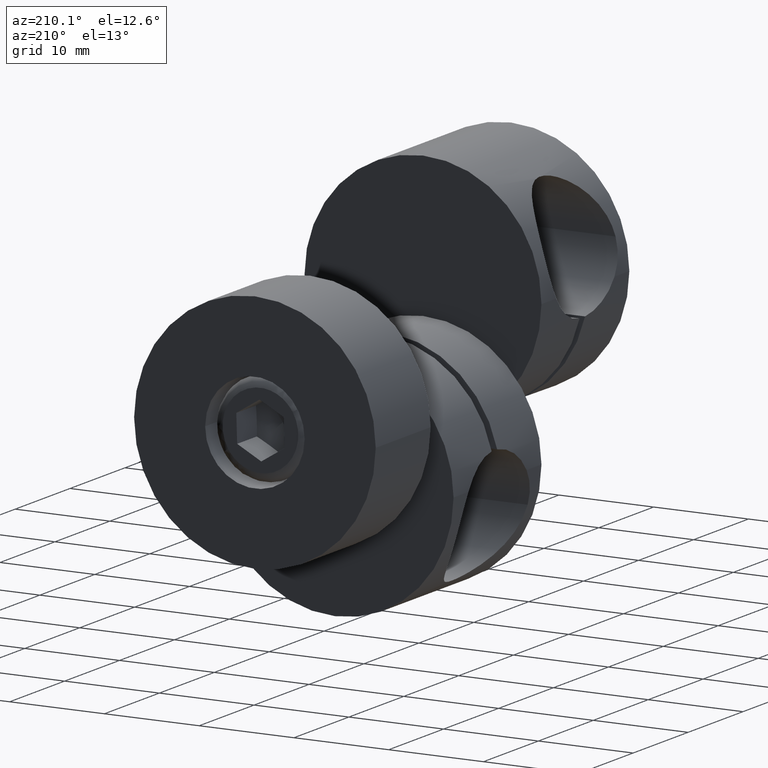
[diagram: clean part render]
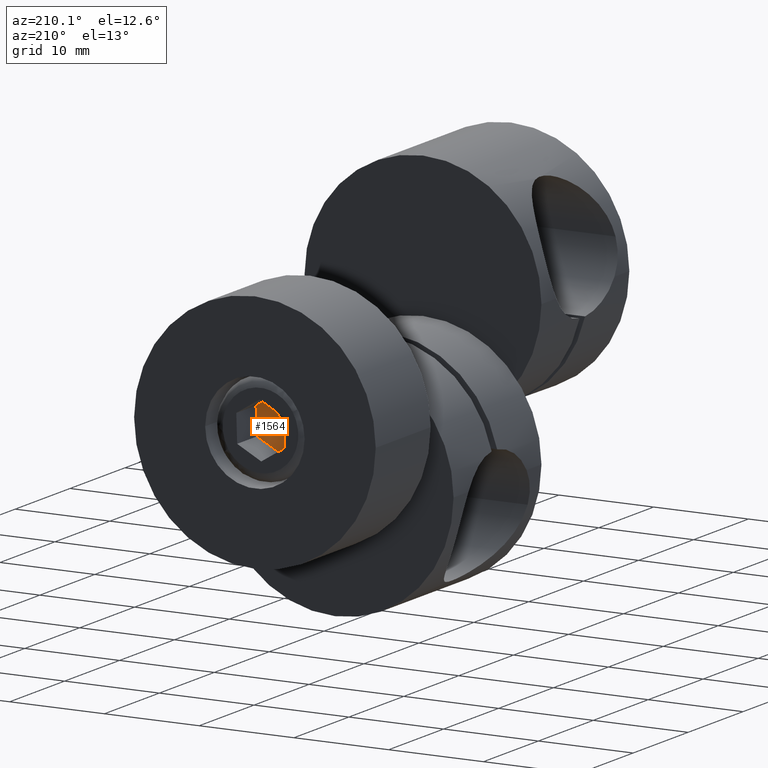
[diagram: same view with one face highlighted and labeled with its STEP entity id]
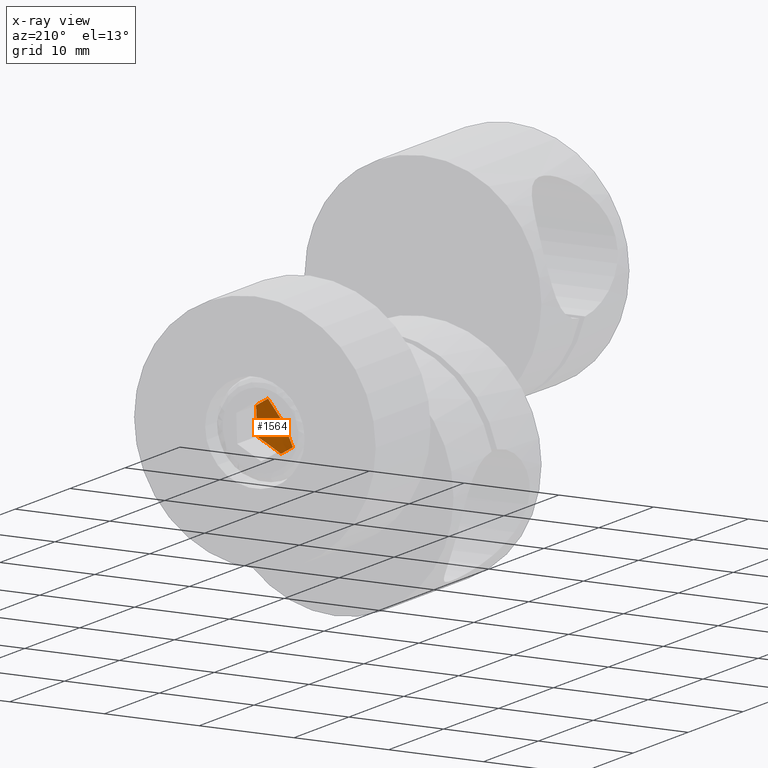
[diagram: x-ray of the same camera — body ghosted, the highlighted face saturated]
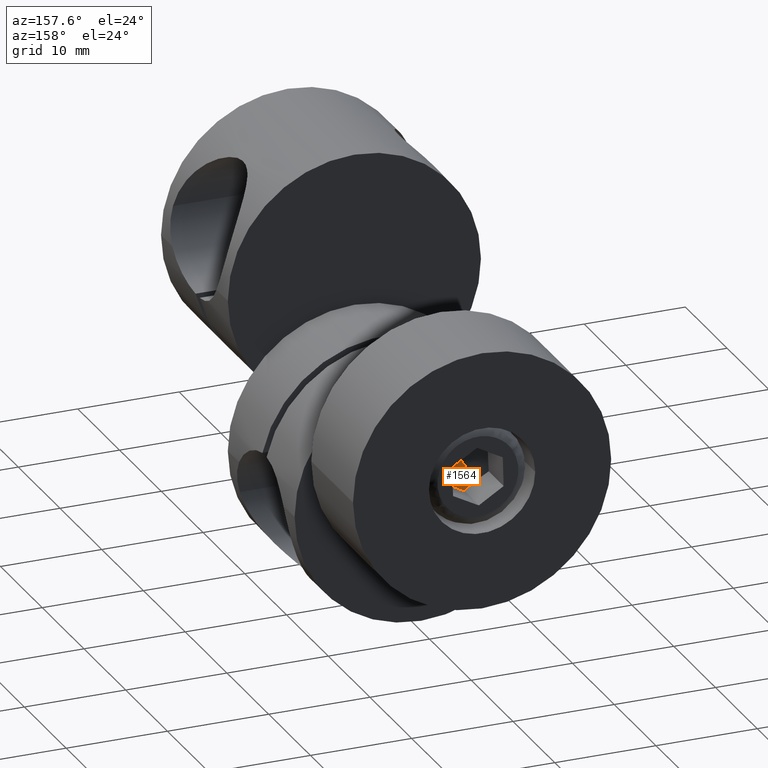
[diagram: same view with one face highlighted and labeled with its STEP entity id]
A machine part, auxiliary view. The second image highlights one B-rep face of the part: STEP entity #1564.
The next image is the same camera in x-ray: the body ghosted, the highlighted face saturated — about 0% of this face is hidden behind the body in this view.
A second angle (auxiliary view) of the same face is appended — the face is thin or edge-on in the first view.
In plain terms, the highlighted conical surface has half-angle 80 deg.
Its self-contained STEP definition (entity closure, byte-faithful):
#54 = CARTESIAN_POINT ( 'NONE',  ( -1.316673841417880000, 17.95306085076419900, 5.374824714211574600 ) ) ;
#125 = ORIENTED_EDGE ( 'NONE', *, *, #400, .T. ) ;
#158 = CARTESIAN_POINT ( 'NONE',  ( -0.08970331809006840100, 18.02125554851480200, 4.614642717521671300 ) ) ;
#162 = ORIENTED_EDGE ( 'NONE', *, *, #1032, .T. ) ;
#165 = CARTESIAN_POINT ( 'NONE',  ( -8.980640777918389500E-011, 17.51224339486927300, 7.499999999855030600 ) ) ;
#168 = CARTESIAN_POINT ( 'NONE',  ( -1.529486177326654200, 18.02430962138916500, 5.031335307376240400 ) ) ;
#192 = CARTESIAN_POINT ( 'NONE',  ( -1.316673841417880000, 17.95306085076419900, 5.374824714211574600 ) ) ;
#218 = ORIENTED_EDGE ( 'NONE', *, *, #569, .F. ) ;
#253 = B_SPLINE_CURVE_WITH_KNOTS ( 'NONE', 3,
 ( #938, #1675, #1875, #944 ),
 .UNSPECIFIED., .F., .F.,
 ( 4, 4 ),
 ( 0.001443375672827954800, 0.002886751345725284200 ),
 .UNSPECIFIED. ) ;
#297 = CARTESIAN_POINT ( 'NONE',  ( 1.529486177326663700, 18.02430962138916500, 9.968664692623752500 ) ) ;
#347 = CARTESIAN_POINT ( 'NONE',  ( 1.182118863995427200, 17.92728383293341900, 5.297139362392222500 ) ) ;
#393 = CARTESIAN_POINT ( 'NONE',  ( -0.9076836670175840700, 17.95306085076419900, 5.121430715311372100 ) ) ;
#400 = EDGE_CURVE ( 'NONE', #1539, #1242, #544, .T. ) ;
#414 = ORIENTED_EDGE ( 'NONE', *, *, #2278, .T. ) ;
#504 = AXIS2_PLACEMENT_3D ( 'NONE', #658, #1561, #1367 ) ;
#544 = B_SPLINE_CURVE_WITH_KNOTS ( 'NONE', 3,
 ( #547, #1280, #347, #1075, #158 ),
 .UNSPECIFIED., .F., .F.,
 ( 4, 1, 4 ),
 ( 0.0000000000000000000, 0.001443375672859334400, 0.002886751345718668400 ),
 .UNSPECIFIED. ) ;
#547 = CARTESIAN_POINT ( 'NONE',  ( 2.453941046652899700, 18.02125554852253200, 5.979636006532533800 ) ) ;
#567 = B_SPLINE_CURVE_WITH_KNOTS ( 'NONE', 3,
 ( #2276, #962, #2285, #1737, #1556 ),
 .UNSPECIFIED., .F., .F.,
 ( 4, 1, 4 ),
 ( 0.0000000000000000000, 0.001443375672862644700, 0.002886751345725289400 ),
 .UNSPECIFIED. ) ;
#569 = EDGE_CURVE ( 'NONE', #2031, #2121, #2069, .T. ) ;
#635 = CARTESIAN_POINT ( 'NONE',  ( 1.316673841417886200, 17.95306085076419900, 9.625175285788413900 ) ) ;
#658 = CARTESIAN_POINT ( 'NONE',  ( 4.942496581075077000E-015, 18.02430962138916500, 7.499999999999995600 ) ) ;
#838 = EDGE_CURVE ( 'NONE', #2271, #1539, #567, .T. ) ;
#850 = LINE ( 'NONE', #297, #1582 ) ;
#938 = CARTESIAN_POINT ( 'NONE',  ( 1.316673841417886200, 17.95306085076419900, 9.625175285788413900 ) ) ;
#944 = CARTESIAN_POINT ( 'NONE',  ( 2.543644364668440800, 18.02125554852253200, 8.864993289057046900 ) ) ;
#962 = CARTESIAN_POINT ( 'NONE',  ( 2.528693812256891600, 17.97883786859274800, 8.384100408461865300 ) ) ;
#996 = CONICAL_SURFACE ( 'NONE', #504, 2.904071853663482200, 1.396263399965230100 ) ;
#1032 = EDGE_CURVE ( 'NONE', #2175, #2271, #253, .T. ) ;
#1075 = CARTESIAN_POINT ( 'NONE',  ( 0.3342374094077682500, 17.97883786904970500, 4.842141598959126500 ) ) ;
#1216 = CARTESIAN_POINT ( 'NONE',  ( 2.543644364668440800, 18.02125554852253200, 8.864993289057046900 ) ) ;
#1242 = VERTEX_POINT ( 'NONE', #2147 ) ;
#1280 = CARTESIAN_POINT ( 'NONE',  ( 2.030000319353596700, 17.97883786859284800, 5.752137124424479900 ) ) ;
#1367 = DIRECTION ( 'NONE',  ( -0.5266695365671529800, 0.0000000000000000000, -0.8500701143153666100 ) ) ;
#1416 = EDGE_LOOP ( 'NONE', ( #218, #414, #162, #2176, #125, #1661 ) ) ;
#1442 = EDGE_CURVE ( 'NONE', #1242, #2121, #1975, .T. ) ;
#1462 = FACE_OUTER_BOUND ( 'NONE', #1416, .T. ) ;
#1472 = CARTESIAN_POINT ( 'NONE',  ( -0.08970331809006840100, 18.02125554851480200, 4.614642717521671300 ) ) ;
#1539 = VERTEX_POINT ( 'NONE', #2314 ) ;
#1556 = CARTESIAN_POINT ( 'NONE',  ( 2.453941046652899700, 18.02125554852253200, 5.979636006532533800 ) ) ;
#1561 = DIRECTION ( 'NONE',  ( -7.385198170912121300E-016, 1.000000000000000000, -1.515444370382366500E-016 ) ) ;
#1564 = ADVANCED_FACE ( 'NONE', ( #1462 ), #996, .F. ) ;
#1582 = VECTOR ( 'NONE', #1925, 1000.000000000000100 ) ;
#1661 = ORIENTED_EDGE ( 'NONE', *, *, #1442, .T. ) ;
#1675 = CARTESIAN_POINT ( 'NONE',  ( 1.725664015837837400, 17.95306085076419900, 9.371781286876034400 ) ) ;
#1737 = CARTESIAN_POINT ( 'NONE',  ( 2.468891599667208100, 17.97883786904961000, 6.460528886922889000 ) ) ;
#1821 = DIRECTION ( 'NONE',  ( -0.5186682427375854900, 0.1736481792723969500, -0.8371556389411031200 ) ) ;
#1868 = VECTOR ( 'NONE', #1821, 1000.000000000000000 ) ;
#1875 = CARTESIAN_POINT ( 'NONE',  ( 2.134654190248644700, 17.97883786904859000, 9.118387287969326800 ) ) ;
#1925 = DIRECTION ( 'NONE',  ( 0.5186682427375851600, 0.1736481792723962900, 0.8371556389411033400 ) ) ;
#1975 = B_SPLINE_CURVE_WITH_KNOTS ( 'NONE', 3,
 ( #1472, #2032, #393, #192 ),
 .UNSPECIFIED., .F., .F.,
 ( 4, 4 ),
 ( 0.0000000000000000000, 0.001443375672827965000 ),
 .UNSPECIFIED. ) ;
#2031 = VERTEX_POINT ( 'NONE', #165 ) ;
#2032 = CARTESIAN_POINT ( 'NONE',  ( -0.4986934928944268300, 17.97883786859377200, 4.868036715955999400 ) ) ;
#2069 = LINE ( 'NONE', #168, #1868 ) ;
#2121 = VERTEX_POINT ( 'NONE', #54 ) ;
#2147 = CARTESIAN_POINT ( 'NONE',  ( -0.08970331809006840100, 18.02125554851480200, 4.614642717521671300 ) ) ;
#2175 = VERTEX_POINT ( 'NONE', #635 ) ;
#2176 = ORIENTED_EDGE ( 'NONE', *, *, #838, .T. ) ;
#2271 = VERTEX_POINT ( 'NONE', #1216 ) ;
#2276 = CARTESIAN_POINT ( 'NONE',  ( 2.543644364668440800, 18.02125554852253200, 8.864993289057046900 ) ) ;
#2278 = EDGE_CURVE ( 'NONE', #2031, #2175, #850, .T. ) ;
#2285 = CARTESIAN_POINT ( 'NONE',  ( 2.498792705695161800, 17.92728383248114800, 7.422314647682462400 ) ) ;
#2314 = CARTESIAN_POINT ( 'NONE',  ( 2.453941046652899700, 18.02125554852253200, 5.979636006532533800 ) ) ;